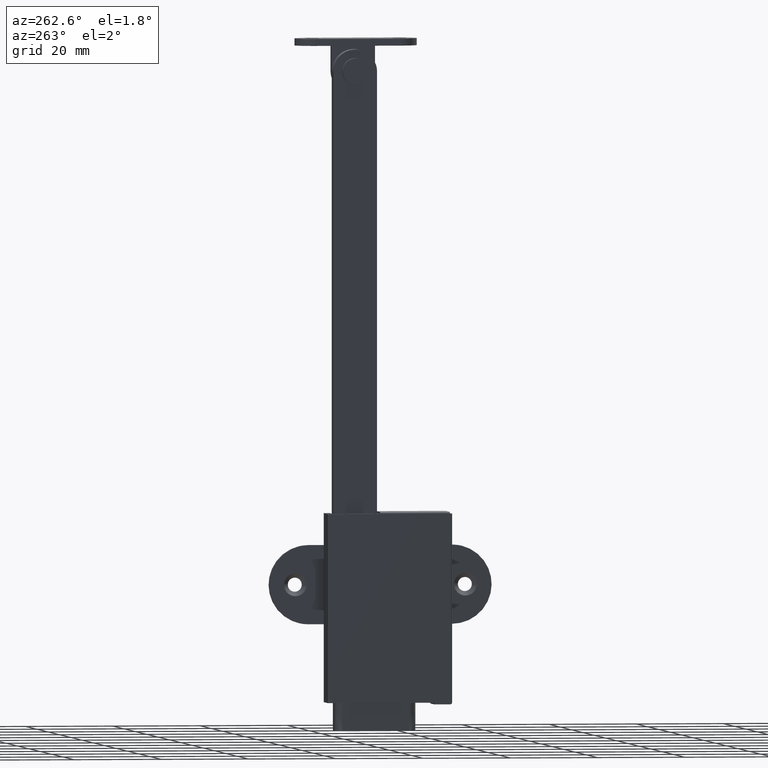
[diagram: clean part render]
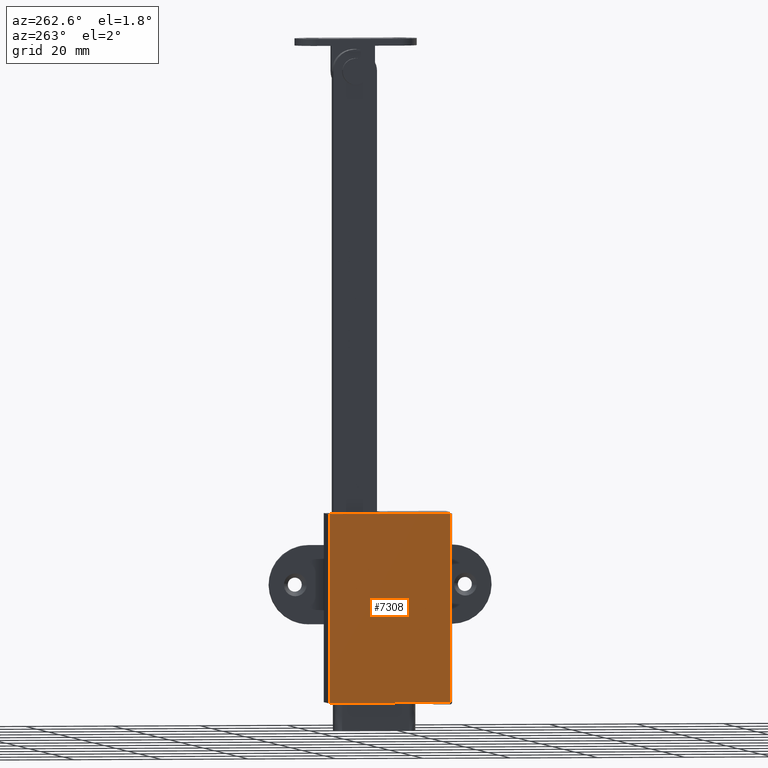
[diagram: same view with one face highlighted and labeled with its STEP entity id]
A machine part, auxiliary view. The second image highlights one B-rep face of the part: STEP entity #7308.
In plain terms, the highlighted face is a freeform B-spline surface patch.
Its self-contained STEP definition (entity closure, byte-faithful):
#6382=CARTESIAN_POINT('',(-2.399993999999905,-5.399994000000000,-173.599985000000000));
#6383=VERTEX_POINT('',#6382);
#6469=CARTESIAN_POINT('',(-2.399993999999905,-21.399994000000000,-173.599985000000000));
#6470=VERTEX_POINT('',#6469);
#6627=CARTESIAN_POINT('',(-2.399993999999905,-21.399994000000000,-173.599985000000000));
#6628=CARTESIAN_POINT('',(-2.399993999999905,-5.399994000000000,-173.599985000000000));
#6629=QUASI_UNIFORM_CURVE('',1,(#6627,#6628),.UNSPECIFIED.,.F.,.U.);
#6630=EDGE_CURVE('',#6470,#6383,#6629,.T.);
#6938=CARTESIAN_POINT('',(-2.399993999999905,-21.550001999999999,-216.599985000000000));
#6939=VERTEX_POINT('',#6938);
#6953=CARTESIAN_POINT('',(-2.399993999999910,6.150000000000000,-216.599985000000000));
#6954=VERTEX_POINT('',#6953);
#6955=CARTESIAN_POINT('',(-2.399993999999910,6.150000000000000,-216.599985000000000));
#6956=CARTESIAN_POINT('',(-2.399993999999905,-21.550001999999999,-216.599985000000000));
#6957=QUASI_UNIFORM_CURVE('',1,(#6955,#6956),.UNSPECIFIED.,.F.,.U.);
#6958=EDGE_CURVE('',#6954,#6939,#6957,.T.);
#7256=CARTESIAN_POINT('',(-2.399993999999910,6.150000000000000,-173.599985000000000));
#7257=VERTEX_POINT('',#7256);
#7273=CARTESIAN_POINT('',(-2.399993999999910,6.150000000000000,-216.599985000000000));
#7274=CARTESIAN_POINT('',(-2.399993999999910,6.150000000000000,-173.599985000000000));
#7275=QUASI_UNIFORM_CURVE('',1,(#7273,#7274),.UNSPECIFIED.,.F.,.U.);
#7276=EDGE_CURVE('',#6954,#7257,#7275,.T.);
#7281=CARTESIAN_POINT('',(-2.399993999999905,-22.933616266128620,-218.747841067857110));
#7282=CARTESIAN_POINT('',(-2.399993999999905,-22.933616266128620,-171.452140081191800));
#7283=CARTESIAN_POINT('',(-2.399993999999905,7.533615752072526,-218.747841067857000));
#7284=CARTESIAN_POINT('',(-2.399993999999905,7.533615752072526,-171.452140081191800));
#7285=B_SPLINE_SURFACE_WITH_KNOTS('',1,1,((#7281,#7283),(#7282,#7284)),.UNSPECIFIED.,.F.,.F.,.U.,(2,2),(2,2),(0.0,47.295700986665253),(0.0,30.467232018201141),.UNSPECIFIED.);
#7286=CARTESIAN_POINT('',(-2.399993999999910,6.150000000000000,-173.599985000000000));
#7287=CARTESIAN_POINT('',(-2.399993999999905,-5.399994000000000,-173.599985000000000));
#7288=QUASI_UNIFORM_CURVE('',1,(#7286,#7287),.UNSPECIFIED.,.F.,.U.);
#7289=EDGE_CURVE('',#7257,#6383,#7288,.T.);
#7290=ORIENTED_EDGE('',*,*,#7289,.F.);
#7291=ORIENTED_EDGE('',*,*,#7276,.F.);
#7292=ORIENTED_EDGE('',*,*,#6958,.T.);
#7293=CARTESIAN_POINT('',(-2.399993999999905,-21.550001999999999,-173.599985000000000));
#7294=VERTEX_POINT('',#7293);
#7295=CARTESIAN_POINT('',(-2.399993999999905,-21.550001999999999,-216.599985000000000));
#7296=CARTESIAN_POINT('',(-2.399993999999905,-21.550001999999999,-173.599985000000000));
#7297=QUASI_UNIFORM_CURVE('',1,(#7295,#7296),.UNSPECIFIED.,.F.,.U.);
#7298=EDGE_CURVE('',#6939,#7294,#7297,.T.);
#7299=ORIENTED_EDGE('',*,*,#7298,.T.);
#7300=CARTESIAN_POINT('',(-2.399993999999905,-21.399994000000000,-173.599985000000000));
#7301=CARTESIAN_POINT('',(-2.399993999999905,-21.550001999999999,-173.599985000000000));
#7302=QUASI_UNIFORM_CURVE('',1,(#7300,#7301),.UNSPECIFIED.,.F.,.U.);
#7303=EDGE_CURVE('',#6470,#7294,#7302,.T.);
#7304=ORIENTED_EDGE('',*,*,#7303,.F.);
#7305=ORIENTED_EDGE('',*,*,#6630,.T.);
#7306=EDGE_LOOP('',(#7290,#7291,#7292,#7299,#7304,#7305));
#7307=FACE_OUTER_BOUND('',#7306,.T.);
#7308=ADVANCED_FACE('',(#7307),#7285,.T.);